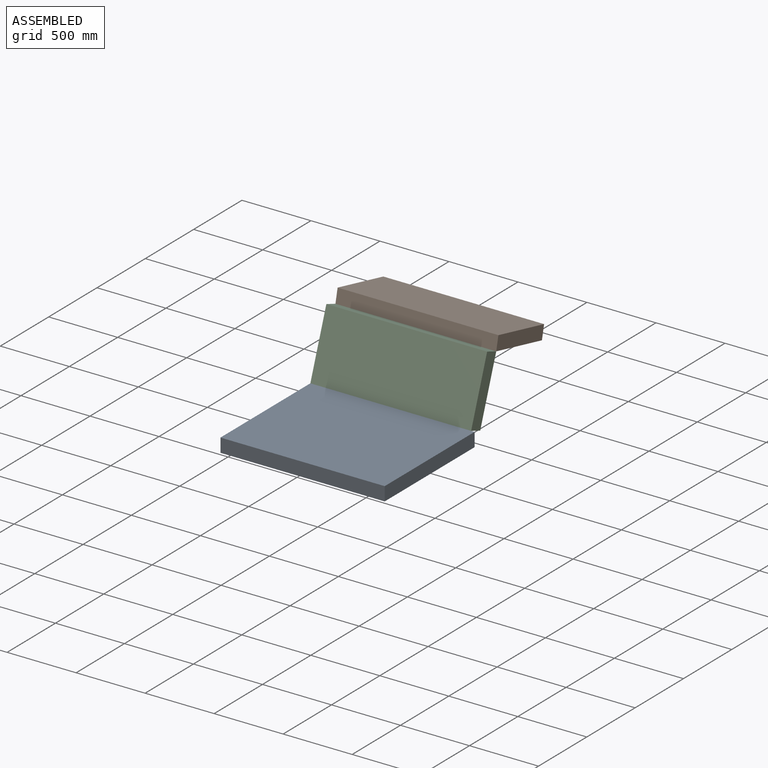
[diagram: assembled view]
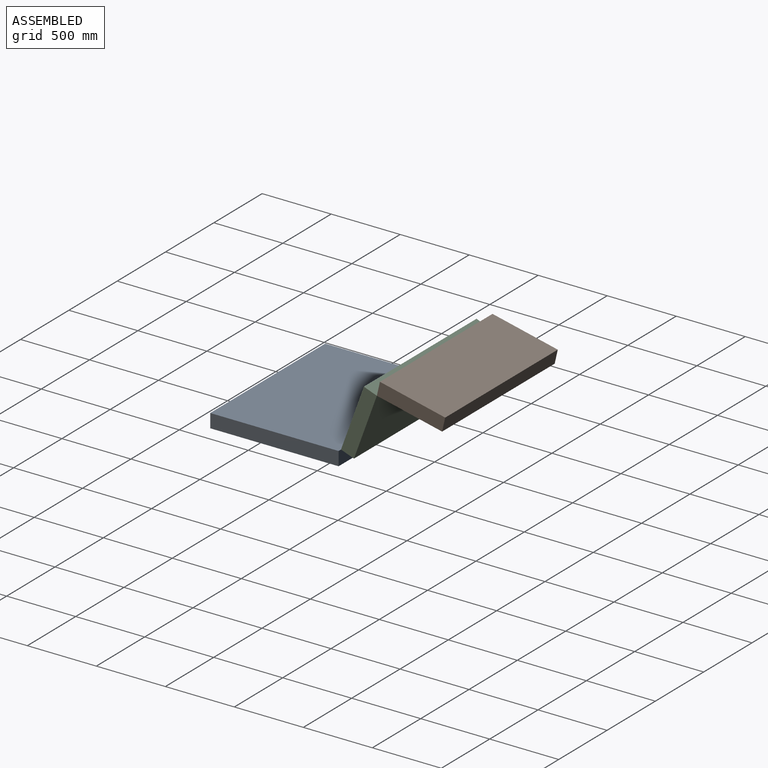
[diagram: assembled view, second angle]
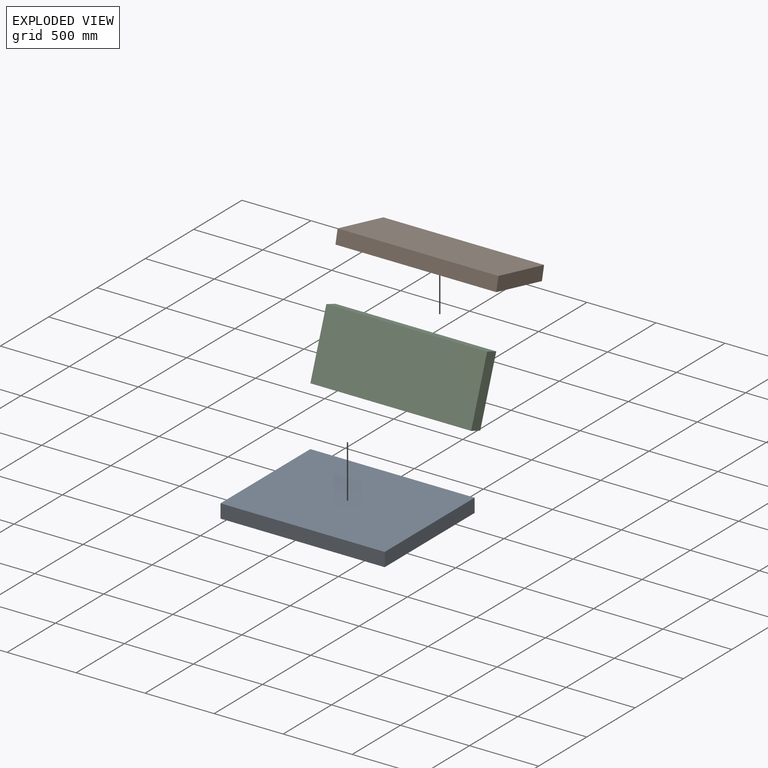
[diagram: exploded view]
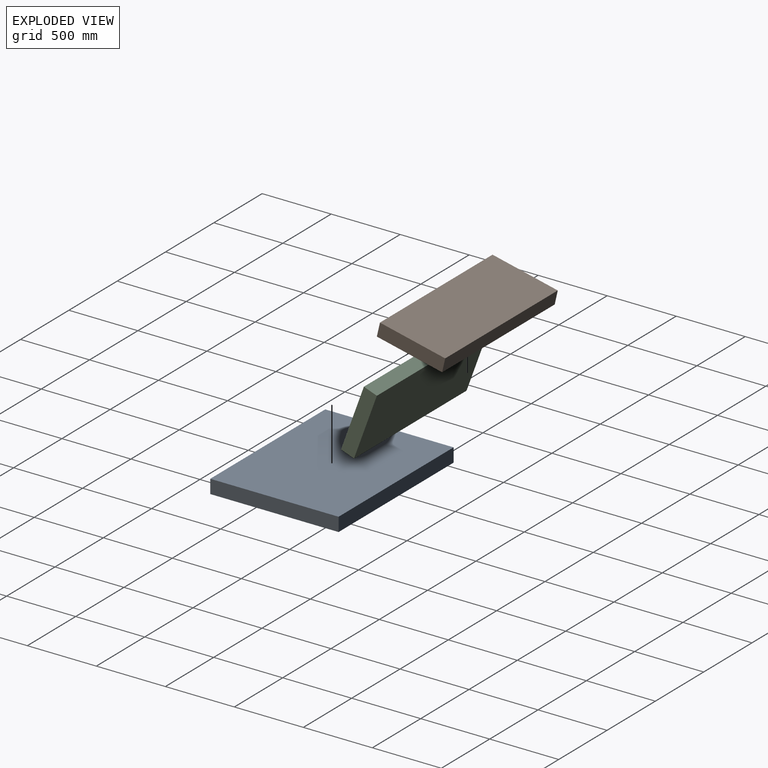
[diagram: exploded view, second angle]
ASSEMBLY  parts=3 mates=2
PART A: 6 faces, bbox 1190x930x100 mm
  f0: plane 1190x100mm, normal (0,1,0), area 119000mm2, adj f1,f3,f4,f5
  f1: plane 930x100mm, normal (-1,0,0), area 93000mm2, adj f0,f2,f4,f5
  f2: plane 1190x100mm, normal (0,-1,0), area 119000mm2, adj f1,f3,f4,f5
  f3: plane 930x100mm, normal (1,0,0), area 93000mm2, adj f0,f2,f4,f5
  f4: plane 1190x930mm, normal (0,0,1), area 1106700mm2, adj f0,f1,f2,f3
  f5: plane 1190x930mm, normal (0,0,-1), area 1106700mm2, adj f0,f1,f2,f3
PART B: 6 faces, bbox 1165x485x100 mm
  f0: plane 485x100mm, normal (-1,0,0), area 48500mm2, adj f1,f3,f4,f5
  f1: plane 1165x100mm, normal (0,-1,0), area 116500mm2, adj f0,f2,f4,f5
  f2: plane 485x100mm, normal (1,0,0), area 48500mm2, adj f1,f3,f4,f5
  f3: plane 1165x100mm, normal (0,1,0), area 116500mm2, adj f0,f2,f4,f5
  f4: plane 1165x485mm, normal (0,0,1), area 565025mm2, adj f0,f1,f2,f3
  f5: plane 1165x485mm, normal (0,0,-1), area 565025mm2, adj f0,f1,f2,f3
PART C: 6 faces, bbox 1165x485x100 mm
  f0: plane 1165x100mm, normal (0,1,0), area 116500mm2, adj f1,f3,f4,f5
  f1: plane 485x100mm, normal (-1,0,0), area 48500mm2, adj f0,f2,f4,f5
  f2: plane 1165x100mm, normal (0,-1,0), area 116500mm2, adj f1,f3,f4,f5
  f3: plane 485x100mm, normal (1,0,0), area 48500mm2, adj f0,f2,f4,f5
  f4: plane 1165x485mm, normal (0,0,1), area 565025mm2, adj f0,f1,f2,f3
  f5: plane 1165x485mm, normal (0,0,-1), area 565025mm2, adj f0,f1,f2,f3
PLACE A t=(0,207.91,-157.08)mm
PLACE B rot(axis=(-1,0,0),12.9deg) t=(0,18.33,679.73)mm
PLACE C rot(axis=(1,0,0),70deg) t=(0,913.8,-965.2)mm
MATE revolute C.f3 <-> B.f2  axis (1,0,0) through (1165,1397.76,364.47)mm
MATE revolute A.f1 <-> C.f1  axis (1,0,0) through (0,1137.91,-57.08)mm
